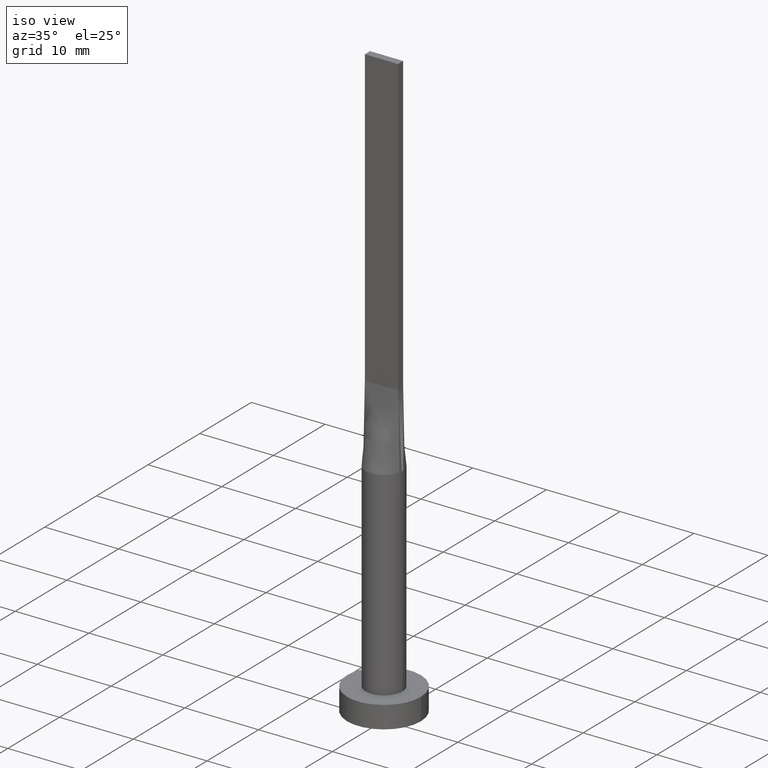
[diagram: clean part render]
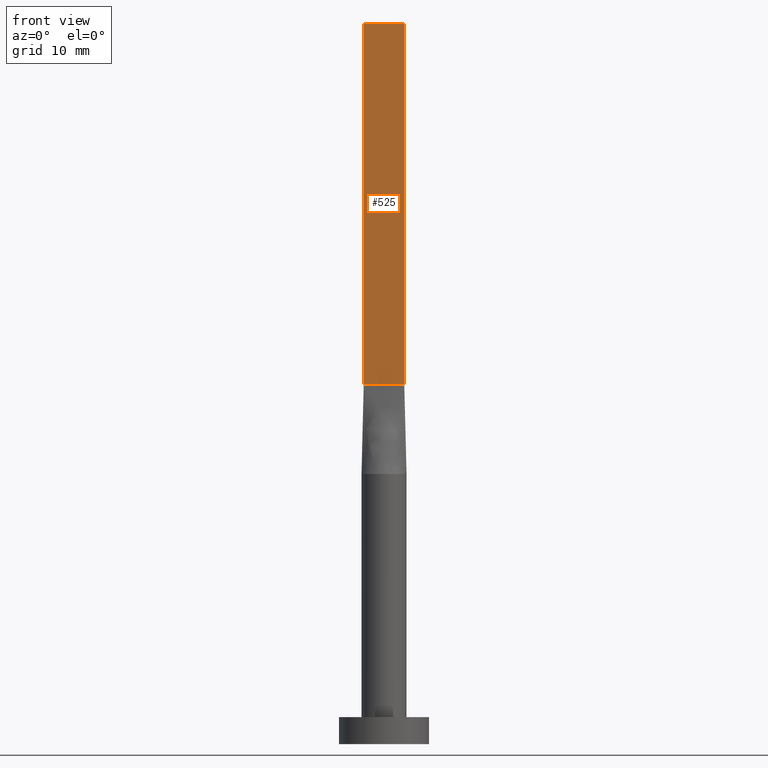
[diagram: tour spotlight — one face highlighted and labeled with its STEP entity id]
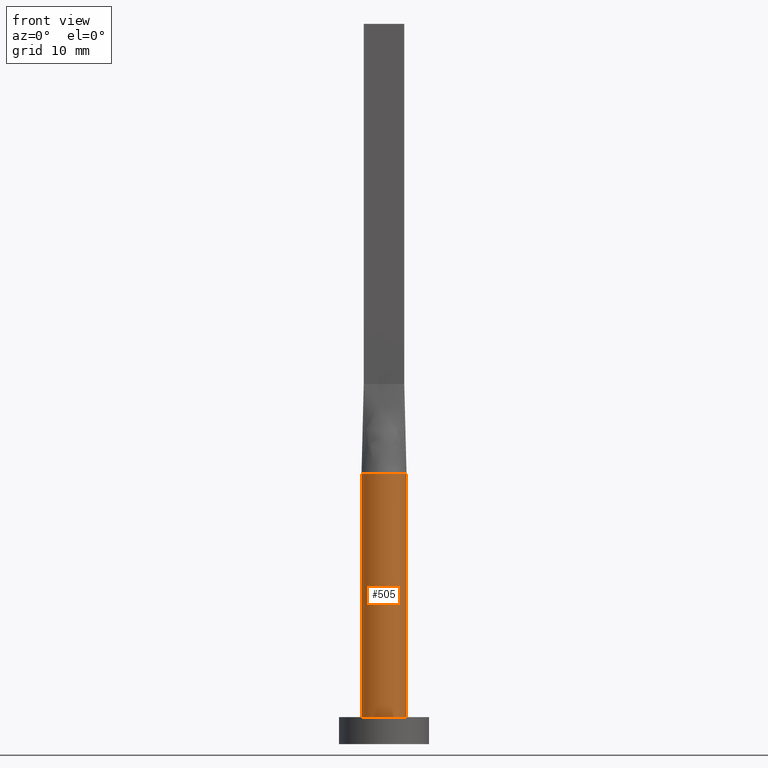
[diagram: tour spotlight — one face highlighted and labeled with its STEP entity id]
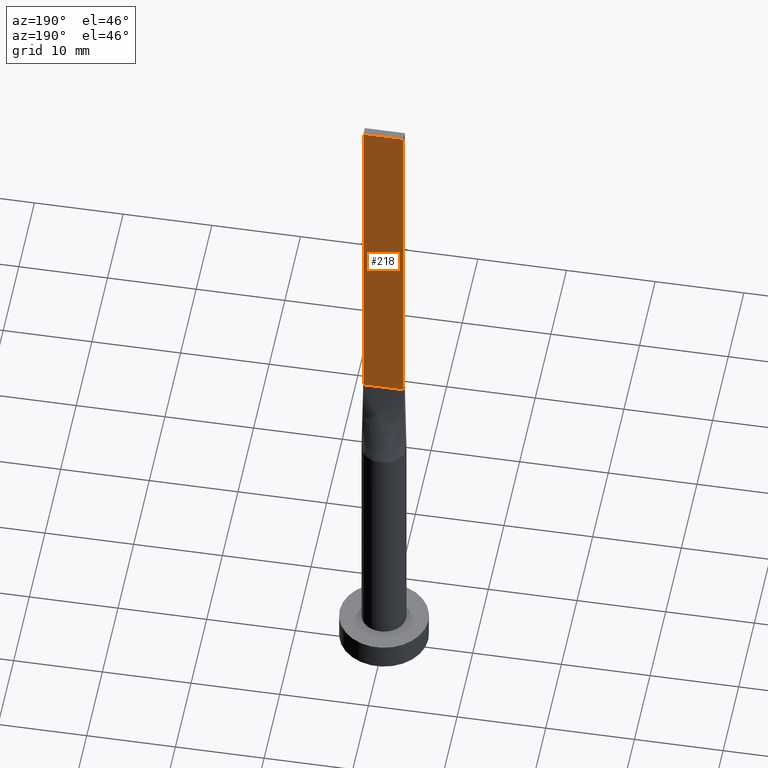
[diagram: tour spotlight — one face highlighted and labeled with its STEP entity id]
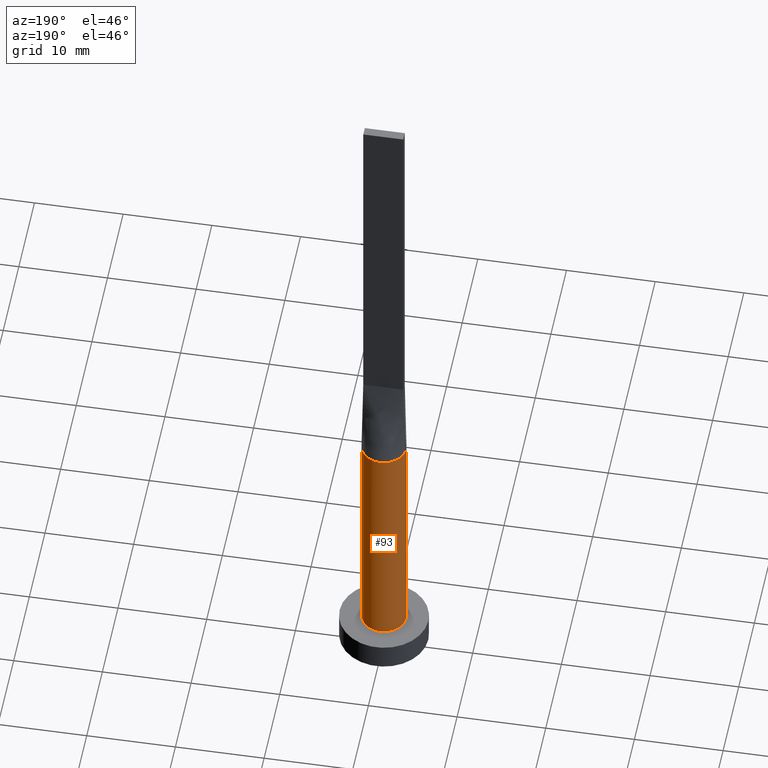
[diagram: tour spotlight — one face highlighted and labeled with its STEP entity id]
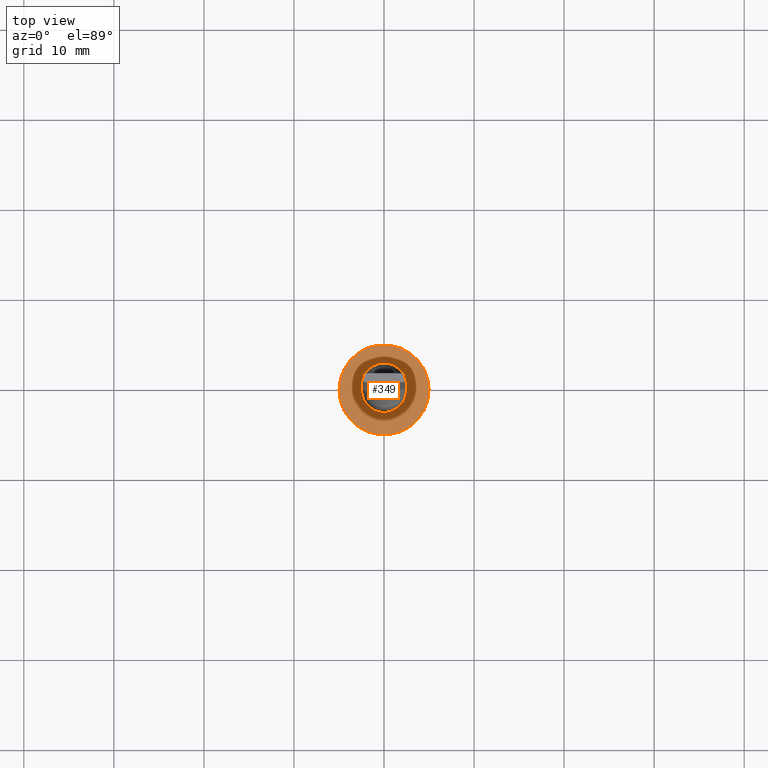
[diagram: tour spotlight — one face highlighted and labeled with its STEP entity id]
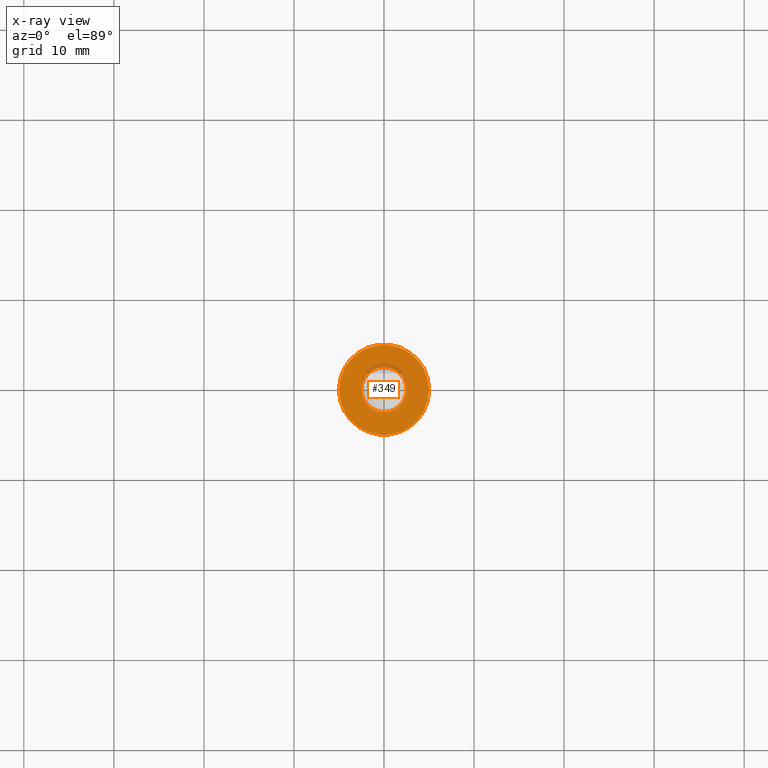
[diagram: x-ray of the same camera — body ghosted, this tour face saturated]
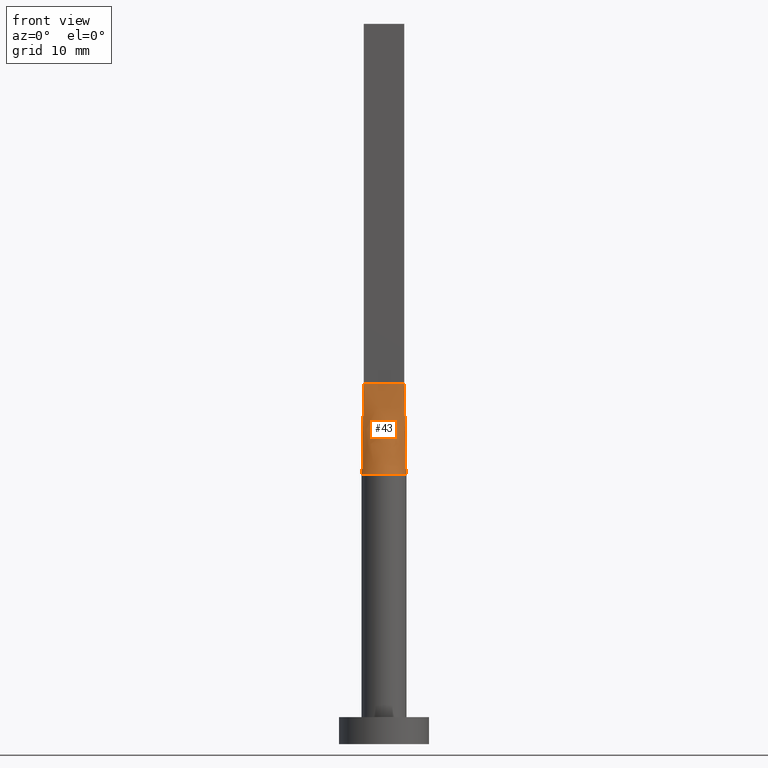
[diagram: tour spotlight — one face highlighted and labeled with its STEP entity id]
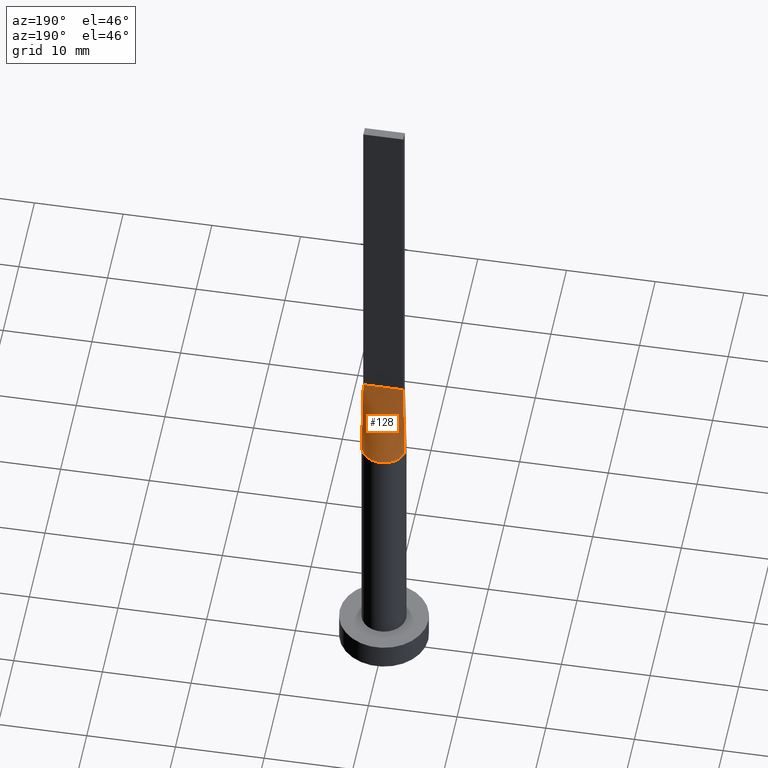
[diagram: tour spotlight — one face highlighted and labeled with its STEP entity id]
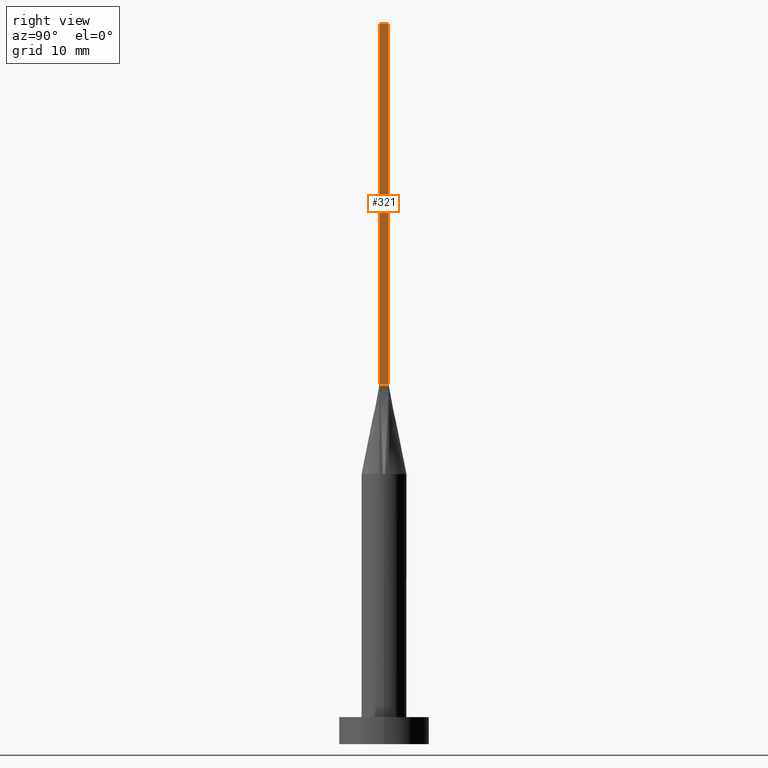
[diagram: tour spotlight — one face highlighted and labeled with its STEP entity id]
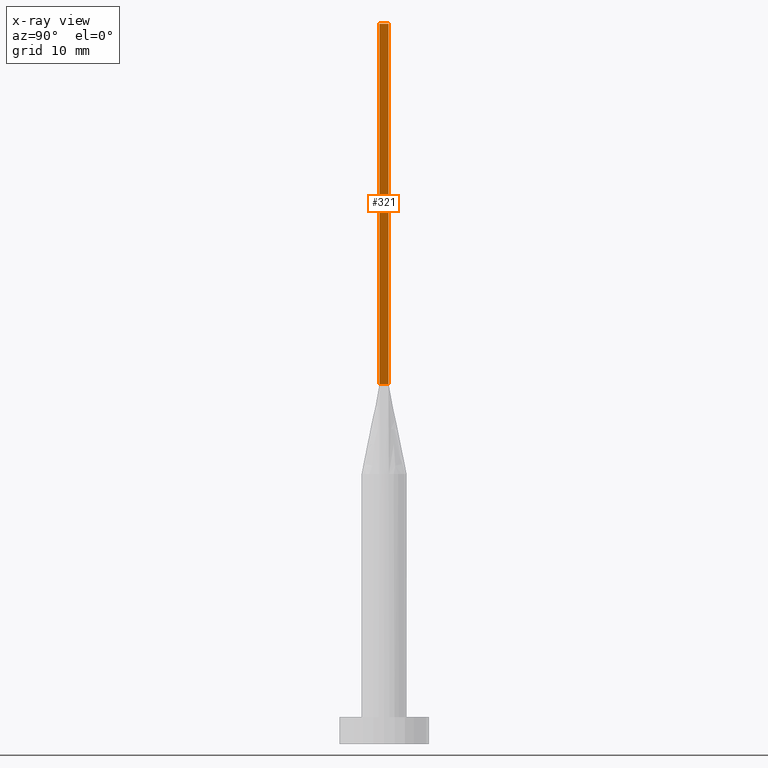
[diagram: x-ray of the same camera — body ghosted, this tour face saturated]
A machine part: a face-by-face anatomy tour. The part has 15 B-rep faces; the first image is the clean iso view, then the 8 largest visible faces are spotlighted one at a time (largest first), each with its STEP entity span.

Face 1 — front view, entity #525. In plain terms, the highlighted planar face has unit normal (0, 1, -0).
Definition (entity closure, byte-faithful):
#9 = LINE ( 'NONE', #227, #257 ) ;
#13 = VERTEX_POINT ( 'NONE', #199 ) ;
#15 = DIRECTION ( 'NONE',  ( 7.228014483236697048E-17, 1.000000000000000000, -0.000000000000000000 ) ) ;
#45 = VECTOR ( 'NONE', #450, 1000.000000000000000 ) ;
#58 = LINE ( 'NONE', #231, #399 ) ;
#59 = ORIENTED_EDGE ( 'NONE', *, *, #208, .T. ) ;
#64 = ORIENTED_EDGE ( 'NONE', *, *, #233, .T. ) ;
#77 = VERTEX_POINT ( 'NONE', #127 ) ;
#104 = CARTESIAN_POINT ( 'NONE',  ( -2.250000000000000000, -0.4999999999999994449, 80.00000000000000000 ) ) ;
#122 = CARTESIAN_POINT ( 'NONE',  ( 2.250000000000000000, -0.4999999999999997780, 80.00000000000000000 ) ) ;
#127 = CARTESIAN_POINT ( 'NONE',  ( -2.250000000000000000, -0.4999999999999994449, 80.00000000000000000 ) ) ;
#146 = DIRECTION ( 'NONE',  ( 1.000000000000000000, -7.228014483236697048E-17, 0.000000000000000000 ) ) ;
#149 = DIRECTION ( 'NONE',  ( -1.000000000000000000, 7.228014483236697048E-17, 0.000000000000000000 ) ) ;
#199 = CARTESIAN_POINT ( 'NONE',  ( 2.250000000000000000, -0.4999999999999997780, 40.00000000000000000 ) ) ;
#200 = EDGE_CURVE ( 'NONE', #77, #315, #9, .T. ) ;
#208 = EDGE_CURVE ( 'NONE', #77, #216, #312, .T. ) ;
#216 = VERTEX_POINT ( 'NONE', #395 ) ;
#227 = CARTESIAN_POINT ( 'NONE',  ( -2.250000000000000000, -0.4999999999999994449, 80.00000000000000000 ) ) ;
#231 = CARTESIAN_POINT ( 'NONE',  ( -2.250000000000000000, -0.4999999999999994449, 40.00000000000000000 ) ) ;
#233 = EDGE_CURVE ( 'NONE', #216, #13, #58, .T. ) ;
#235 = EDGE_LOOP ( 'NONE', ( #64, #375, #571, #59 ) ) ;
#244 = AXIS2_PLACEMENT_3D ( 'NONE', #104, #15, #149 ) ;
#256 = DIRECTION ( 'NONE',  ( -0.000000000000000000, -0.000000000000000000, -1.000000000000000000 ) ) ;
#257 = VECTOR ( 'NONE', #146, 1000.000000000000000 ) ;
#268 = CARTESIAN_POINT ( 'NONE',  ( -2.250000000000000000, -0.4999999999999994449, 80.00000000000000000 ) ) ;
#312 = LINE ( 'NONE', #268, #45 ) ;
#315 = VERTEX_POINT ( 'NONE', #557 ) ;
#375 = ORIENTED_EDGE ( 'NONE', *, *, #486, .F. ) ;
#379 = LINE ( 'NONE', #122, #483 ) ;
#395 = CARTESIAN_POINT ( 'NONE',  ( -2.250000000000000000, -0.4999999999999994449, 40.00000000000000000 ) ) ;
#399 = VECTOR ( 'NONE', #400, 1000.000000000000000 ) ;
#400 = DIRECTION ( 'NONE',  ( 1.000000000000000000, -7.228014483236697048E-17, 0.000000000000000000 ) ) ;
#401 = FACE_OUTER_BOUND ( 'NONE', #235, .T. ) ;
#442 = PLANE ( 'NONE',  #244 ) ;
#450 = DIRECTION ( 'NONE',  ( -0.000000000000000000, -0.000000000000000000, -1.000000000000000000 ) ) ;
#483 = VECTOR ( 'NONE', #256, 1000.000000000000000 ) ;
#486 = EDGE_CURVE ( 'NONE', #315, #13, #379, .T. ) ;
#525 = ADVANCED_FACE ( 'NONE', ( #401 ), #442, .F. ) ;
#557 = CARTESIAN_POINT ( 'NONE',  ( 2.250000000000000000, -0.4999999999999997780, 80.00000000000000000 ) ) ;
#571 = ORIENTED_EDGE ( 'NONE', *, *, #200, .F. ) ;

Face 2 — front view, entity #505. In plain terms, the highlighted cylindrical surface (edge-blend (fillet) strip) has radius 2.5 mm, axis along (-0, -0, -1).
Definition (entity closure, byte-faithful):
#4 = VERTEX_POINT ( 'NONE', #160 ) ;
#8 = DIRECTION ( 'NONE',  ( 1.000000000000000000, 0.000000000000000000, 0.000000000000000000 ) ) ;
#23 = VECTOR ( 'NONE', #171, 1000.000000000000000 ) ;
#27 = CIRCLE ( 'NONE', #383, 2.500000000000000000 ) ;
#31 = DIRECTION ( 'NONE',  ( 0.000000000000000000, 0.000000000000000000, 1.000000000000000000 ) ) ;
#52 = AXIS2_PLACEMENT_3D ( 'NONE', #370, #546, #152 ) ;
#60 = DIRECTION ( 'NONE',  ( 0.000000000000000000, 0.000000000000000000, 1.000000000000000000 ) ) ;
#63 = EDGE_CURVE ( 'NONE', #320, #305, #124, .T. ) ;
#65 = CARTESIAN_POINT ( 'NONE',  ( 2.499645589935823420, 5.999196936655281332E-16, 30.00000000000000000 ) ) ;
#72 = CIRCLE ( 'NONE', #572, 2.500000000000000000 ) ;
#79 = DIRECTION ( 'NONE',  ( 0.000000000000000000, 0.000000000000000000, 1.000000000000000000 ) ) ;
#83 = CARTESIAN_POINT ( 'NONE',  ( -2.500000000000000000, 0.000000000000000000, 3.000000000000000000 ) ) ;
#88 = VERTEX_POINT ( 'NONE', #477 ) ;
#91 = CARTESIAN_POINT ( 'NONE',  ( -2.500000000000000000, 0.000000000000000000, 30.00000000000000000 ) ) ;
#95 = LINE ( 'NONE', #343, #299 ) ;
#124 = CIRCLE ( 'NONE', #492, 2.500000000000000000 ) ;
#125 = DIRECTION ( 'NONE',  ( 1.000000000000000000, 0.000000000000000000, 0.000000000000000000 ) ) ;
#152 = DIRECTION ( 'NONE',  ( -1.000000000000000000, 0.000000000000000000, 0.000000000000000000 ) ) ;
#160 = CARTESIAN_POINT ( 'NONE',  ( 2.500000000000000000, 3.061616997868383141E-16, 3.000000000000000000 ) ) ;
#167 = LINE ( 'NONE', #91, #23 ) ;
#171 = DIRECTION ( 'NONE',  ( -0.000000000000000000, -0.000000000000000000, -1.000000000000000000 ) ) ;
#176 = CARTESIAN_POINT ( 'NONE',  ( 0.000000000000000000, 0.000000000000000000, 30.00000000000000000 ) ) ;
#177 = CIRCLE ( 'NONE', #576, 2.500000000000000000 ) ;
#240 = ORIENTED_EDGE ( 'NONE', *, *, #63, .F. ) ;
#273 = EDGE_LOOP ( 'NONE', ( #460, #240, #493, #389, #428, #393 ) ) ;
#299 = VECTOR ( 'NONE', #529, 1000.000000000000000 ) ;
#305 = VERTEX_POINT ( 'NONE', #65 ) ;
#316 = CARTESIAN_POINT ( 'NONE',  ( -2.499645589935823420, -1.700711608024726496E-15, 30.00000000000000000 ) ) ;
#320 = VERTEX_POINT ( 'NONE', #461 ) ;
#343 = CARTESIAN_POINT ( 'NONE',  ( 2.500000000000000000, 3.061616997868383141E-16, 30.00000000000000000 ) ) ;
#350 = DIRECTION ( 'NONE',  ( 1.000000000000000000, -4.440892098500626162E-15, 0.000000000000000000 ) ) ;
#361 = EDGE_CURVE ( 'NONE', #566, #372, #167, .T. ) ;
#370 = CARTESIAN_POINT ( 'NONE',  ( 0.000000000000000000, 0.000000000000000000, 30.00000000000000000 ) ) ;
#372 = VERTEX_POINT ( 'NONE', #83 ) ;
#378 = EDGE_CURVE ( 'NONE', #88, #320, #177, .T. ) ;
#383 = AXIS2_PLACEMENT_3D ( 'NONE', #476, #31, #125 ) ;
#388 = EDGE_CURVE ( 'NONE', #305, #4, #95, .T. ) ;
#389 = ORIENTED_EDGE ( 'NONE', *, *, #436, .F. ) ;
#393 = ORIENTED_EDGE ( 'NONE', *, *, #549, .T. ) ;
#408 = FACE_OUTER_BOUND ( 'NONE', #273, .T. ) ;
#415 = DIRECTION ( 'NONE',  ( 1.000000000000000000, 0.000000000000000000, 0.000000000000000000 ) ) ;
#428 = ORIENTED_EDGE ( 'NONE', *, *, #361, .T. ) ;
#430 = DIRECTION ( 'NONE',  ( 0.000000000000000000, 0.000000000000000000, 1.000000000000000000 ) ) ;
#436 = EDGE_CURVE ( 'NONE', #566, #88, #27, .T. ) ;
#460 = ORIENTED_EDGE ( 'NONE', *, *, #388, .F. ) ;
#461 = CARTESIAN_POINT ( 'NONE',  ( 2.440706242928429415, -0.5423794613208688942, 30.00000000000000000 ) ) ;
#476 = CARTESIAN_POINT ( 'NONE',  ( 0.000000000000000000, 0.000000000000000000, 30.00000000000000000 ) ) ;
#477 = CARTESIAN_POINT ( 'NONE',  ( -2.440688158044365785, -0.5423755258804862089, 30.00000000000000000 ) ) ;
#481 = CARTESIAN_POINT ( 'NONE',  ( 0.000000000000000000, 0.000000000000000000, 30.00000000000000000 ) ) ;
#492 = AXIS2_PLACEMENT_3D ( 'NONE', #481, #430, #350 ) ;
#493 = ORIENTED_EDGE ( 'NONE', *, *, #378, .F. ) ;
#505 = ADVANCED_FACE ( 'NONE', ( #408 ), #507, .T. ) ;
#507 = CYLINDRICAL_SURFACE ( 'NONE', #52, 2.500000000000000000 ) ;
#529 = DIRECTION ( 'NONE',  ( -0.000000000000000000, -0.000000000000000000, -1.000000000000000000 ) ) ;
#546 = DIRECTION ( 'NONE',  ( -0.000000000000000000, -0.000000000000000000, -1.000000000000000000 ) ) ;
#549 = EDGE_CURVE ( 'NONE', #372, #4, #72, .T. ) ;
#553 = CARTESIAN_POINT ( 'NONE',  ( 0.000000000000000000, 0.000000000000000000, 3.000000000000000000 ) ) ;
#566 = VERTEX_POINT ( 'NONE', #316 ) ;
#572 = AXIS2_PLACEMENT_3D ( 'NONE', #553, #60, #8 ) ;
#576 = AXIS2_PLACEMENT_3D ( 'NONE', #176, #79, #415 ) ;

Face 3 — auxiliary view, entity #218. In plain terms, the highlighted planar face has unit normal (0, -1, 0).
Definition (entity closure, byte-faithful):
#3 = FACE_OUTER_BOUND ( 'NONE', #515, .T. ) ;
#22 = EDGE_CURVE ( 'NONE', #280, #101, #412, .T. ) ;
#32 = VECTOR ( 'NONE', #130, 1000.000000000000000 ) ;
#94 = ORIENTED_EDGE ( 'NONE', *, *, #143, .F. ) ;
#98 = DIRECTION ( 'NONE',  ( 0.000000000000000000, -0.000000000000000000, -1.000000000000000000 ) ) ;
#101 = VERTEX_POINT ( 'NONE', #109 ) ;
#109 = CARTESIAN_POINT ( 'NONE',  ( 2.249999999999999556, 0.5000000000000002220, 40.00000000000000000 ) ) ;
#117 = CARTESIAN_POINT ( 'NONE',  ( -2.249999999999999556, 0.5000000000000002220, 80.00000000000000000 ) ) ;
#118 = VECTOR ( 'NONE', #172, 1000.000000000000000 ) ;
#126 = LINE ( 'NONE', #298, #32 ) ;
#130 = DIRECTION ( 'NONE',  ( -1.000000000000000000, -0.000000000000000000, -0.000000000000000000 ) ) ;
#142 = DIRECTION ( 'NONE',  ( 0.000000000000000000, -1.000000000000000000, 0.000000000000000000 ) ) ;
#143 = EDGE_CURVE ( 'NONE', #346, #445, #530, .T. ) ;
#172 = DIRECTION ( 'NONE',  ( -0.000000000000000000, -0.000000000000000000, -1.000000000000000000 ) ) ;
#184 = EDGE_CURVE ( 'NONE', #101, #445, #126, .T. ) ;
#185 = PLANE ( 'NONE',  #466 ) ;
#218 = ADVANCED_FACE ( 'NONE', ( #3 ), #185, .F. ) ;
#228 = VECTOR ( 'NONE', #369, 1000.000000000000000 ) ;
#236 = VECTOR ( 'NONE', #275, 1000.000000000000000 ) ;
#264 = CARTESIAN_POINT ( 'NONE',  ( -2.249999999999999556, 0.5000000000000002220, 80.00000000000000000 ) ) ;
#274 = ORIENTED_EDGE ( 'NONE', *, *, #559, .F. ) ;
#275 = DIRECTION ( 'NONE',  ( -1.000000000000000000, 0.000000000000000000, 0.000000000000000000 ) ) ;
#280 = VERTEX_POINT ( 'NONE', #402 ) ;
#298 = CARTESIAN_POINT ( 'NONE',  ( -2.249999999999999556, 0.5000000000000002220, 40.00000000000000000 ) ) ;
#324 = ORIENTED_EDGE ( 'NONE', *, *, #184, .T. ) ;
#331 = CARTESIAN_POINT ( 'NONE',  ( 2.249999999999999556, 0.5000000000000002220, 80.00000000000000000 ) ) ;
#346 = VERTEX_POINT ( 'NONE', #117 ) ;
#369 = DIRECTION ( 'NONE',  ( -0.000000000000000000, -0.000000000000000000, -1.000000000000000000 ) ) ;
#386 = CARTESIAN_POINT ( 'NONE',  ( -2.249999999999999556, 0.5000000000000002220, 40.00000000000000000 ) ) ;
#402 = CARTESIAN_POINT ( 'NONE',  ( 2.249999999999999556, 0.5000000000000002220, 80.00000000000000000 ) ) ;
#412 = LINE ( 'NONE', #331, #228 ) ;
#445 = VERTEX_POINT ( 'NONE', #386 ) ;
#452 = CARTESIAN_POINT ( 'NONE',  ( 2.249999999999999556, 0.5000000000000002220, 80.00000000000000000 ) ) ;
#466 = AXIS2_PLACEMENT_3D ( 'NONE', #538, #142, #98 ) ;
#499 = LINE ( 'NONE', #452, #236 ) ;
#515 = EDGE_LOOP ( 'NONE', ( #324, #94, #274, #528 ) ) ;
#528 = ORIENTED_EDGE ( 'NONE', *, *, #22, .T. ) ;
#530 = LINE ( 'NONE', #264, #118 ) ;
#538 = CARTESIAN_POINT ( 'NONE',  ( 2.249999999999999556, 0.5000000000000002220, 80.00000000000000000 ) ) ;
#559 = EDGE_CURVE ( 'NONE', #280, #346, #499, .T. ) ;

Face 4 — auxiliary view, entity #93. In plain terms, the highlighted cylindrical surface (edge-blend (fillet) strip) has radius 2.5 mm, axis along (-0, -0, -1).
Definition (entity closure, byte-faithful):
#4 = VERTEX_POINT ( 'NONE', #160 ) ;
#7 = CARTESIAN_POINT ( 'NONE',  ( -2.093723281432891437, 1.388001797188529451, 30.00000000000000000 ) ) ;
#11 = CARTESIAN_POINT ( 'NONE',  ( -2.323660390030918510, 0.9543733860570832173, 30.00000000000000000 ) ) ;
#16 = EDGE_CURVE ( 'NONE', #337, #566, #354, .T. ) ;
#19 = ORIENTED_EDGE ( 'NONE', *, *, #192, .F. ) ;
#23 = VECTOR ( 'NONE', #171, 1000.000000000000000 ) ;
#42 = CARTESIAN_POINT ( 'NONE',  ( 2.323660390030918954, 0.9543733860570833283, 30.00000000000000711 ) ) ;
#54 = DIRECTION ( 'NONE',  ( 1.000000000000000000, 0.000000000000000000, 0.000000000000000000 ) ) ;
#65 = CARTESIAN_POINT ( 'NONE',  ( 2.499645589935823420, 5.999196936655281332E-16, 30.00000000000000000 ) ) ;
#66 = ORIENTED_EDGE ( 'NONE', *, *, #361, .F. ) ;
#70 = AXIS2_PLACEMENT_3D ( 'NONE', #300, #138, #310 ) ;
#81 = EDGE_CURVE ( 'NONE', #305, #478, #314, .T. ) ;
#83 = CARTESIAN_POINT ( 'NONE',  ( -2.500000000000000000, 0.000000000000000000, 3.000000000000000000 ) ) ;
#90 = CARTESIAN_POINT ( 'NONE',  ( 1.935644909179608186, 1.608159499248285051, 29.99999999999999645 ) ) ;
#91 = CARTESIAN_POINT ( 'NONE',  ( -2.500000000000000000, 0.000000000000000000, 30.00000000000000000 ) ) ;
#93 = ADVANCED_FACE ( 'NONE', ( #433 ), #533, .T. ) ;
#95 = LINE ( 'NONE', #343, #299 ) ;
#137 = CARTESIAN_POINT ( 'NONE',  ( -1.260416918790968843, 2.182794756967428196, 29.99999999999999289 ) ) ;
#138 = DIRECTION ( 'NONE',  ( 0.000000000000000000, 0.000000000000000000, 1.000000000000000000 ) ) ;
#144 = ORIENTED_EDGE ( 'NONE', *, *, #81, .F. ) ;
#160 = CARTESIAN_POINT ( 'NONE',  ( 2.500000000000000000, 3.061616997868383141E-16, 3.000000000000000000 ) ) ;
#167 = LINE ( 'NONE', #91, #23 ) ;
#171 = DIRECTION ( 'NONE',  ( -0.000000000000000000, -0.000000000000000000, -1.000000000000000000 ) ) ;
#192 = EDGE_CURVE ( 'NONE', #478, #337, #444, .T. ) ;
#202 = DIRECTION ( 'NONE',  ( 1.000000000000000000, 0.000000000000000000, 0.000000000000000000 ) ) ;
#212 = CARTESIAN_POINT ( 'NONE',  ( 2.440676307083422980, 0.5423728264510006003, 30.00000000000000000 ) ) ;
#237 = CARTESIAN_POINT ( 'NONE',  ( 1.260416918790968843, 2.182794756967427752, 29.99999999999999645 ) ) ;
#252 = AXIS2_PLACEMENT_3D ( 'NONE', #307, #459, #565 ) ;
#254 = DIRECTION ( 'NONE',  ( 0.000000000000000000, 0.000000000000000000, 1.000000000000000000 ) ) ;
#266 = CARTESIAN_POINT ( 'NONE',  ( -0.6674771052374470770, 2.430579781493059421, 29.99999999999998934 ) ) ;
#290 = ORIENTED_EDGE ( 'NONE', *, *, #534, .T. ) ;
#299 = VECTOR ( 'NONE', #529, 1000.000000000000000 ) ;
#300 = CARTESIAN_POINT ( 'NONE',  ( 0.000000000000000000, 0.000000000000000000, 30.00000000000000000 ) ) ;
#301 = ORIENTED_EDGE ( 'NONE', *, *, #16, .F. ) ;
#305 = VERTEX_POINT ( 'NONE', #65 ) ;
#307 = CARTESIAN_POINT ( 'NONE',  ( 0.000000000000000000, 0.000000000000000000, 30.00000000000000000 ) ) ;
#309 = CARTESIAN_POINT ( 'NONE',  ( 0.3342381693191150416, 2.499999999999999556, 30.00000000000000355 ) ) ;
#310 = DIRECTION ( 'NONE',  ( 1.000000000000000000, 0.000000000000000000, 0.000000000000000000 ) ) ;
#314 = CIRCLE ( 'NONE', #70, 2.500000000000000000 ) ;
#316 = CARTESIAN_POINT ( 'NONE',  ( -2.499645589935823420, -1.700711608024726496E-15, 30.00000000000000000 ) ) ;
#317 = CARTESIAN_POINT ( 'NONE',  ( 0.6674771052374470770, 2.430579781493058977, 29.99999999999998224 ) ) ;
#337 = VERTEX_POINT ( 'NONE', #457 ) ;
#343 = CARTESIAN_POINT ( 'NONE',  ( 2.500000000000000000, 3.061616997868383141E-16, 30.00000000000000000 ) ) ;
#353 = CARTESIAN_POINT ( 'NONE',  ( 1.519400572660313031, 2.006070808634367708, 30.00000000000000000 ) ) ;
#354 = CIRCLE ( 'NONE', #472, 2.500000000000000000 ) ;
#356 = ORIENTED_EDGE ( 'NONE', *, *, #388, .T. ) ;
#360 = CARTESIAN_POINT ( 'NONE',  ( -2.440694335308545071, 0.5423767520433731004, 30.00000000000000000 ) ) ;
#361 = EDGE_CURVE ( 'NONE', #566, #372, #167, .T. ) ;
#372 = VERTEX_POINT ( 'NONE', #83 ) ;
#388 = EDGE_CURVE ( 'NONE', #305, #4, #95, .T. ) ;
#410 = CARTESIAN_POINT ( 'NONE',  ( 0.000000000000000000, 0.000000000000000000, 30.00000000000000000 ) ) ;
#419 = CIRCLE ( 'NONE', #562, 2.500000000000000000 ) ;
#429 = CARTESIAN_POINT ( 'NONE',  ( 2.396350003401058526, 0.7408555563113465858, 30.00000000000000355 ) ) ;
#433 = FACE_OUTER_BOUND ( 'NONE', #437, .T. ) ;
#435 = CARTESIAN_POINT ( 'NONE',  ( -1.519400572660313253, 2.006070808634367264, 30.00000000000001421 ) ) ;
#437 = EDGE_LOOP ( 'NONE', ( #144, #356, #290, #66, #301, #19 ) ) ;
#444 = B_SPLINE_CURVE_WITH_KNOTS ( 'NONE', 3,
 ( #470, #429, #42, #578, #90, #353, #237, #317, #309, #448, #266, #137, #435, #541, #7, #11, #496, #360 ),
 .UNSPECIFIED., .F., .F.,
 ( 4, 2, 2, 2, 2, 2, 2, 2, 4 ),
 ( 0.000000000000000000, 0.1249999999999999722, 0.2500000000000000000, 0.3750000000000000000, 0.5000000000000001110, 0.6250000000000001110, 0.7500000000000000000, 0.8750000000000000000, 1.000000000000000000 ),
 .UNSPECIFIED. ) ;
#446 = CARTESIAN_POINT ( 'NONE',  ( 0.000000000000000000, 0.000000000000000000, 3.000000000000000000 ) ) ;
#448 = CARTESIAN_POINT ( 'NONE',  ( -0.3342381693191151526, 2.499999999999999556, 30.00000000000000355 ) ) ;
#457 = CARTESIAN_POINT ( 'NONE',  ( -2.440694335308545071, 0.5423767520433731004, 30.00000000000000000 ) ) ;
#459 = DIRECTION ( 'NONE',  ( -0.000000000000000000, -0.000000000000000000, -1.000000000000000000 ) ) ;
#470 = CARTESIAN_POINT ( 'NONE',  ( 2.440676307083422980, 0.5423728264510006003, 30.00000000000000000 ) ) ;
#472 = AXIS2_PLACEMENT_3D ( 'NONE', #410, #254, #202 ) ;
#478 = VERTEX_POINT ( 'NONE', #212 ) ;
#496 = CARTESIAN_POINT ( 'NONE',  ( -2.396350003401058082, 0.7408555563113466969, 30.00000000000000000 ) ) ;
#502 = DIRECTION ( 'NONE',  ( 0.000000000000000000, 0.000000000000000000, 1.000000000000000000 ) ) ;
#529 = DIRECTION ( 'NONE',  ( -0.000000000000000000, -0.000000000000000000, -1.000000000000000000 ) ) ;
#533 = CYLINDRICAL_SURFACE ( 'NONE', #252, 2.500000000000000000 ) ;
#534 = EDGE_CURVE ( 'NONE', #4, #372, #419, .T. ) ;
#541 = CARTESIAN_POINT ( 'NONE',  ( -1.935644909179609297, 1.608159499248285718, 30.00000000000001066 ) ) ;
#562 = AXIS2_PLACEMENT_3D ( 'NONE', #446, #502, #54 ) ;
#565 = DIRECTION ( 'NONE',  ( -1.000000000000000000, 0.000000000000000000, 0.000000000000000000 ) ) ;
#566 = VERTEX_POINT ( 'NONE', #316 ) ;
#578 = CARTESIAN_POINT ( 'NONE',  ( 2.093723281432890104, 1.388001797188529007, 29.99999999999998934 ) ) ;

Face 5 — top view, entity #349. An x-ray twin of the same camera follows (body ghosted, this face saturated) — the face is partly hidden behind the body. In plain terms, the highlighted planar face has unit normal (0, 0, 1).
Definition (entity closure, byte-faithful):
#1 = ORIENTED_EDGE ( 'NONE', *, *, #549, .F. ) ;
#4 = VERTEX_POINT ( 'NONE', #160 ) ;
#5 = DIRECTION ( 'NONE',  ( 1.000000000000000000, 0.000000000000000000, 0.000000000000000000 ) ) ;
#6 = CIRCLE ( 'NONE', #432, 5.000000000000000000 ) ;
#8 = DIRECTION ( 'NONE',  ( 1.000000000000000000, 0.000000000000000000, 0.000000000000000000 ) ) ;
#29 = CARTESIAN_POINT ( 'NONE',  ( 0.000000000000000000, 0.000000000000000000, 3.000000000000000000 ) ) ;
#54 = DIRECTION ( 'NONE',  ( 1.000000000000000000, 0.000000000000000000, 0.000000000000000000 ) ) ;
#60 = DIRECTION ( 'NONE',  ( 0.000000000000000000, 0.000000000000000000, 1.000000000000000000 ) ) ;
#72 = CIRCLE ( 'NONE', #572, 2.500000000000000000 ) ;
#83 = CARTESIAN_POINT ( 'NONE',  ( -2.500000000000000000, 0.000000000000000000, 3.000000000000000000 ) ) ;
#85 = ORIENTED_EDGE ( 'NONE', *, *, #224, .T. ) ;
#92 = CARTESIAN_POINT ( 'NONE',  ( 0.000000000000000000, 0.000000000000000000, 3.000000000000000000 ) ) ;
#105 = ORIENTED_EDGE ( 'NONE', *, *, #417, .T. ) ;
#115 = EDGE_LOOP ( 'NONE', ( #105, #85 ) ) ;
#160 = CARTESIAN_POINT ( 'NONE',  ( 2.500000000000000000, 3.061616997868383141E-16, 3.000000000000000000 ) ) ;
#187 = PLANE ( 'NONE',  #272 ) ;
#222 = VERTEX_POINT ( 'NONE', #489 ) ;
#224 = EDGE_CURVE ( 'NONE', #520, #222, #6, .T. ) ;
#271 = DIRECTION ( 'NONE',  ( 1.000000000000000000, 0.000000000000000000, 0.000000000000000000 ) ) ;
#272 = AXIS2_PLACEMENT_3D ( 'NONE', #29, #490, #573 ) ;
#349 = ADVANCED_FACE ( 'NONE', ( #516, #521 ), #187, .T. ) ;
#362 = CARTESIAN_POINT ( 'NONE',  ( 5.000000000000000000, 6.123233995736766282E-16, 3.000000000000000000 ) ) ;
#372 = VERTEX_POINT ( 'NONE', #83 ) ;
#384 = DIRECTION ( 'NONE',  ( 0.000000000000000000, 0.000000000000000000, 1.000000000000000000 ) ) ;
#417 = EDGE_CURVE ( 'NONE', #222, #520, #519, .T. ) ;
#419 = CIRCLE ( 'NONE', #562, 2.500000000000000000 ) ;
#432 = AXIS2_PLACEMENT_3D ( 'NONE', #92, #443, #271 ) ;
#443 = DIRECTION ( 'NONE',  ( 0.000000000000000000, 0.000000000000000000, 1.000000000000000000 ) ) ;
#446 = CARTESIAN_POINT ( 'NONE',  ( 0.000000000000000000, 0.000000000000000000, 3.000000000000000000 ) ) ;
#464 = EDGE_LOOP ( 'NONE', ( #1, #548 ) ) ;
#469 = CARTESIAN_POINT ( 'NONE',  ( 0.000000000000000000, 0.000000000000000000, 3.000000000000000000 ) ) ;
#489 = CARTESIAN_POINT ( 'NONE',  ( -5.000000000000000000, 0.000000000000000000, 3.000000000000000000 ) ) ;
#490 = DIRECTION ( 'NONE',  ( 0.000000000000000000, 0.000000000000000000, 1.000000000000000000 ) ) ;
#502 = DIRECTION ( 'NONE',  ( 0.000000000000000000, 0.000000000000000000, 1.000000000000000000 ) ) ;
#516 = FACE_BOUND ( 'NONE', #464, .T. ) ;
#519 = CIRCLE ( 'NONE', #532, 5.000000000000000000 ) ;
#520 = VERTEX_POINT ( 'NONE', #362 ) ;
#521 = FACE_OUTER_BOUND ( 'NONE', #115, .T. ) ;
#532 = AXIS2_PLACEMENT_3D ( 'NONE', #469, #384, #5 ) ;
#534 = EDGE_CURVE ( 'NONE', #4, #372, #419, .T. ) ;
#548 = ORIENTED_EDGE ( 'NONE', *, *, #534, .F. ) ;
#549 = EDGE_CURVE ( 'NONE', #372, #4, #72, .T. ) ;
#553 = CARTESIAN_POINT ( 'NONE',  ( 0.000000000000000000, 0.000000000000000000, 3.000000000000000000 ) ) ;
#562 = AXIS2_PLACEMENT_3D ( 'NONE', #446, #502, #54 ) ;
#572 = AXIS2_PLACEMENT_3D ( 'NONE', #553, #60, #8 ) ;
#573 = DIRECTION ( 'NONE',  ( 1.000000000000000000, 0.000000000000000000, -0.000000000000000000 ) ) ;

Face 6 — front view, entity #43. In plain terms, the highlighted face is a freeform B-spline surface patch.
Definition (entity closure, byte-faithful):
#13 = VERTEX_POINT ( 'NONE', #199 ) ;
#25 = CARTESIAN_POINT ( 'NONE',  ( -2.323660390030918066, -0.9543733860570832173, 30.00000000000000711 ) ) ;
#30 = CARTESIAN_POINT ( 'NONE',  ( -2.093723281432891881, -1.388001797188529007, 30.00000000000000000 ) ) ;
#37 = CARTESIAN_POINT ( 'NONE',  ( 0.6674771052374466329, -2.430579781493059865, 29.99999999999999289 ) ) ;
#43 = ADVANCED_FACE ( 'NONE', ( #552 ), #221, .T. ) ;
#44 = CARTESIAN_POINT ( 'NONE',  ( 0.3749999999999998890, -0.4999999999999995559, 39.99999999999999289 ) ) ;
#58 = LINE ( 'NONE', #231, #399 ) ;
#73 = CARTESIAN_POINT ( 'NONE',  ( -2.396350003401058970, -0.7408555563113458087, 30.00000000000000355 ) ) ;
#79 = DIRECTION ( 'NONE',  ( 0.000000000000000000, 0.000000000000000000, 1.000000000000000000 ) ) ;
#88 = VERTEX_POINT ( 'NONE', #477 ) ;
#131 = CARTESIAN_POINT ( 'NONE',  ( 2.093723281432890548, -1.388001797188530340, 29.99999999999999645 ) ) ;
#135 = CARTESIAN_POINT ( 'NONE',  ( 2.396350003401058082, -0.7408555563113468079, 30.00000000000000000 ) ) ;
#156 = CARTESIAN_POINT ( 'NONE',  ( -2.250000000000000000, -0.4999999999999994449, 40.00000000000000000 ) ) ;
#163 = CARTESIAN_POINT ( 'NONE',  ( -1.519400572660313919, -2.006070808634366820, 30.00000000000000355 ) ) ;
#174 = CARTESIAN_POINT ( 'NONE',  ( 2.440467650459881899, -0.5423261445466405206, 30.00000000000000000 ) ) ;
#176 = CARTESIAN_POINT ( 'NONE',  ( 0.000000000000000000, 0.000000000000000000, 30.00000000000000000 ) ) ;
#177 = CIRCLE ( 'NONE', #576, 2.500000000000000000 ) ;
#178 = CARTESIAN_POINT ( 'NONE',  ( 0.7499999999999996669, -0.4999999999999995559, 39.99999999999999289 ) ) ;
#180 = CARTESIAN_POINT ( 'NONE',  ( 1.499999999999999778, -0.4999999999999997780, 39.99999999999999289 ) ) ;
#182 = CARTESIAN_POINT ( 'NONE',  ( 1.260416918790968399, -2.182794756967428640, 29.99999999999999645 ) ) ;
#198 = ORIENTED_EDGE ( 'NONE', *, *, #233, .F. ) ;
#199 = CARTESIAN_POINT ( 'NONE',  ( 2.250000000000000000, -0.4999999999999997780, 40.00000000000000000 ) ) ;
#205 = CARTESIAN_POINT ( 'NONE',  ( -1.875000000000000444, -0.4999999999999995559, 40.00000000000000000 ) ) ;
#210 = CARTESIAN_POINT ( 'NONE',  ( 2.345233825229940727, -0.5211630722733201493, 35.00000000000000000 ) ) ;
#211 = CARTESIAN_POINT ( 'NONE',  ( -1.935644909179609297, -1.608159499248284829, 30.00000000000000711 ) ) ;
#213 = CARTESIAN_POINT ( 'NONE',  ( -2.345233825229941171, -0.5211630722733197052, 35.00000000000000000 ) ) ;
#215 = CARTESIAN_POINT ( 'NONE',  ( 1.519400572660313031, -2.006070808634367264, 30.00000000000000711 ) ) ;
#216 = VERTEX_POINT ( 'NONE', #395 ) ;
#221 = B_SPLINE_SURFACE_WITH_KNOTS ( 'NONE', 3, 1, ( 
 ( #282, #156 ),
 ( #73, #246 ),
 ( #25, #205 ),
 ( #30, #560 ),
 ( #211, #327 ),
 ( #163, #334 ),
 ( #513, #251 ),
 ( #342, #523 ),
 ( #581, #423 ),
 ( #579, #259 ),
 ( #37, #44 ),
 ( #182, #178 ),
 ( #215, #355 ),
 ( #531, #385 ),
 ( #131, #180 ),
 ( #304, #570 ),
 ( #135, #535 ),
 ( #174, #526 ) ),
 .UNSPECIFIED., .F., .F., .F.,
 ( 4, 2, 2, 2, 2, 2, 2, 2, 4 ),
 ( 2, 2 ),
 ( 0.000000000000000000, 0.1249999999999999167, 0.2499999999999998335, 0.3749999999999998335, 0.4999999999999998890, 0.6249999999999998890, 0.7499999999999998890, 0.8750000000000000000, 1.000000000000000000 ),
 ( 0.000000000000000000, 1.000000000000000000 ),
 .UNSPECIFIED. ) ;
#231 = CARTESIAN_POINT ( 'NONE',  ( -2.250000000000000000, -0.4999999999999994449, 40.00000000000000000 ) ) ;
#233 = EDGE_CURVE ( 'NONE', #216, #13, #58, .T. ) ;
#246 = CARTESIAN_POINT ( 'NONE',  ( -2.062500000000000000, -0.4999999999999995559, 40.00000000000000000 ) ) ;
#251 = CARTESIAN_POINT ( 'NONE',  ( -0.7500000000000006661, -0.4999999999999995559, 39.99999999999999289 ) ) ;
#259 = CARTESIAN_POINT ( 'NONE',  ( 0.1875000000000000555, -0.4999999999999995559, 39.99999999999999289 ) ) ;
#261 = LINE ( 'NONE', #213, #338 ) ;
#282 = CARTESIAN_POINT ( 'NONE',  ( -2.440467650459882343, -0.5423261445466400765, 30.00000000000000000 ) ) ;
#304 = CARTESIAN_POINT ( 'NONE',  ( 2.323660390030917178, -0.9543733860570838834, 30.00000000000001066 ) ) ;
#320 = VERTEX_POINT ( 'NONE', #461 ) ;
#327 = CARTESIAN_POINT ( 'NONE',  ( -1.312500000000000444, -0.4999999999999995559, 39.99999999999999289 ) ) ;
#334 = CARTESIAN_POINT ( 'NONE',  ( -0.9375000000000006661, -0.4999999999999995559, 39.99999999999999289 ) ) ;
#338 = VECTOR ( 'NONE', #568, 1000.000000000000000 ) ;
#340 = EDGE_CURVE ( 'NONE', #320, #13, #347, .T. ) ;
#342 = CARTESIAN_POINT ( 'NONE',  ( -0.6674771052374477431, -2.430579781493059865, 30.00000000000000000 ) ) ;
#347 = LINE ( 'NONE', #210, #527 ) ;
#355 = CARTESIAN_POINT ( 'NONE',  ( 0.9374999999999997780, -0.4999999999999995559, 39.99999999999999289 ) ) ;
#376 = DIRECTION ( 'NONE',  ( -0.01904314058352514841, 0.004231809018561172135, 0.9998097071888962795 ) ) ;
#378 = EDGE_CURVE ( 'NONE', #88, #320, #177, .T. ) ;
#385 = CARTESIAN_POINT ( 'NONE',  ( 1.312499999999999778, -0.4999999999999996669, 39.99999999999999289 ) ) ;
#395 = CARTESIAN_POINT ( 'NONE',  ( -2.250000000000000000, -0.4999999999999994449, 40.00000000000000000 ) ) ;
#399 = VECTOR ( 'NONE', #400, 1000.000000000000000 ) ;
#400 = DIRECTION ( 'NONE',  ( 1.000000000000000000, -7.228014483236697048E-17, 0.000000000000000000 ) ) ;
#415 = DIRECTION ( 'NONE',  ( 1.000000000000000000, 0.000000000000000000, 0.000000000000000000 ) ) ;
#423 = CARTESIAN_POINT ( 'NONE',  ( -0.1874999999999999445, -0.4999999999999995559, 39.99999999999999289 ) ) ;
#441 = ORIENTED_EDGE ( 'NONE', *, *, #456, .T. ) ;
#456 = EDGE_CURVE ( 'NONE', #216, #88, #261, .T. ) ;
#461 = CARTESIAN_POINT ( 'NONE',  ( 2.440706242928429415, -0.5423794613208688942, 30.00000000000000000 ) ) ;
#477 = CARTESIAN_POINT ( 'NONE',  ( -2.440688158044365785, -0.5423755258804862089, 30.00000000000000000 ) ) ;
#513 = CARTESIAN_POINT ( 'NONE',  ( -1.260416918790969509, -2.182794756967427752, 29.99999999999999645 ) ) ;
#523 = CARTESIAN_POINT ( 'NONE',  ( -0.3750000000000002220, -0.4999999999999995559, 39.99999999999999289 ) ) ;
#526 = CARTESIAN_POINT ( 'NONE',  ( 2.250000000000000000, -0.4999999999999997780, 40.00000000000000000 ) ) ;
#527 = VECTOR ( 'NONE', #376, 1000.000000000000000 ) ;
#531 = CARTESIAN_POINT ( 'NONE',  ( 1.935644909179608852, -1.608159499248284829, 30.00000000000000711 ) ) ;
#535 = CARTESIAN_POINT ( 'NONE',  ( 2.062499999999999556, -0.4999999999999997780, 39.99999999999999289 ) ) ;
#536 = ORIENTED_EDGE ( 'NONE', *, *, #340, .T. ) ;
#552 = FACE_OUTER_BOUND ( 'NONE', #577, .T. ) ;
#556 = ORIENTED_EDGE ( 'NONE', *, *, #378, .T. ) ;
#560 = CARTESIAN_POINT ( 'NONE',  ( -1.500000000000000444, -0.4999999999999995559, 39.99999999999999289 ) ) ;
#568 = DIRECTION ( 'NONE',  ( -0.01904314058352519351, -0.004231809018561160859, -0.9998097071888962795 ) ) ;
#570 = CARTESIAN_POINT ( 'NONE',  ( 1.875000000000000000, -0.4999999999999997780, 39.99999999999999289 ) ) ;
#576 = AXIS2_PLACEMENT_3D ( 'NONE', #176, #79, #415 ) ;
#577 = EDGE_LOOP ( 'NONE', ( #556, #536, #198, #441 ) ) ;
#579 = CARTESIAN_POINT ( 'NONE',  ( 0.3342381693191144310, -2.500000000000000444, 30.00000000000000355 ) ) ;
#581 = CARTESIAN_POINT ( 'NONE',  ( -0.3342381693191159853, -2.499999999999999556, 30.00000000000000711 ) ) ;

Face 7 — auxiliary view, entity #128. In plain terms, the highlighted face is a freeform B-spline surface patch.
Definition (entity closure, byte-faithful):
#7 = CARTESIAN_POINT ( 'NONE',  ( -2.093723281432891437, 1.388001797188529451, 30.00000000000000000 ) ) ;
#11 = CARTESIAN_POINT ( 'NONE',  ( -2.323660390030918510, 0.9543733860570832173, 30.00000000000000000 ) ) ;
#24 = CARTESIAN_POINT ( 'NONE',  ( 2.323660390030918954, 0.9543733860570833283, 30.00000000000000711 ) ) ;
#28 = CARTESIAN_POINT ( 'NONE',  ( -2.345233825229940727, 0.5211630722733198162, 35.00000000000000000 ) ) ;
#32 = VECTOR ( 'NONE', #130, 1000.000000000000000 ) ;
#36 = CARTESIAN_POINT ( 'NONE',  ( -2.440467650459882343, 0.5423261445466395214, 30.00000000000000000 ) ) ;
#40 = CARTESIAN_POINT ( 'NONE',  ( -2.093723281432891437, 1.388001797188529451, 30.00000000000000000 ) ) ;
#42 = CARTESIAN_POINT ( 'NONE',  ( 2.323660390030918954, 0.9543733860570833283, 30.00000000000000711 ) ) ;
#46 = ORIENTED_EDGE ( 'NONE', *, *, #111, .T. ) ;
#48 = CARTESIAN_POINT ( 'NONE',  ( -0.9375000000000114353, 0.5000000000000002220, 39.99999999999999289 ) ) ;
#53 = ORIENTED_EDGE ( 'NONE', *, *, #184, .F. ) ;
#56 = DIRECTION ( 'NONE',  ( -0.01904314058352519351, -0.004231809018561117491, 0.9998097071888962795 ) ) ;
#76 = CARTESIAN_POINT ( 'NONE',  ( 1.874999999999995115, 0.5000000000000002220, 39.99999999999999289 ) ) ;
#84 = VECTOR ( 'NONE', #239, 1000.000000000000000 ) ;
#87 = CARTESIAN_POINT ( 'NONE',  ( -1.500000000000007327, 0.5000000000000002220, 39.99999999999999289 ) ) ;
#90 = CARTESIAN_POINT ( 'NONE',  ( 1.935644909179608186, 1.608159499248285051, 29.99999999999999645 ) ) ;
#101 = VERTEX_POINT ( 'NONE', #109 ) ;
#107 = FACE_OUTER_BOUND ( 'NONE', #318, .T. ) ;
#109 = CARTESIAN_POINT ( 'NONE',  ( 2.249999999999999556, 0.5000000000000002220, 40.00000000000000000 ) ) ;
#111 = EDGE_CURVE ( 'NONE', #337, #445, #503, .T. ) ;
#114 = CARTESIAN_POINT ( 'NONE',  ( 0.3749999999999862332, 0.5000000000000002220, 39.99999999999999289 ) ) ;
#126 = LINE ( 'NONE', #298, #32 ) ;
#128 = ADVANCED_FACE ( 'NONE', ( #107 ), #134, .T. ) ;
#130 = DIRECTION ( 'NONE',  ( -1.000000000000000000, -0.000000000000000000, -0.000000000000000000 ) ) ;
#133 = CARTESIAN_POINT ( 'NONE',  ( -0.3342381693191151526, 2.499999999999999556, 30.00000000000000355 ) ) ;
#134 = B_SPLINE_SURFACE_WITH_KNOTS ( 'NONE', 3, 1, ( 
 ( #326, #162 ),
 ( #329, #508 ),
 ( #24, #76 ),
 ( #204, #558 ),
 ( #333, #512 ),
 ( #164, #416 ),
 ( #287, #207 ),
 ( #335, #114 ),
 ( #422, #263 ),
 ( #133, #348 ),
 ( #381, #170 ),
 ( #258, #306 ),
 ( #474, #48 ),
 ( #426, #341 ),
 ( #40, #87 ),
 ( #387, #522 ),
 ( #390, #392 ),
 ( #36, #214 ) ),
 .UNSPECIFIED., .F., .F., .F.,
 ( 4, 2, 2, 2, 2, 2, 2, 2, 4 ),
 ( 2, 2 ),
 ( 0.000000000000000000, 0.1249999999999999722, 0.2500000000000000000, 0.3750000000000000000, 0.5000000000000001110, 0.6250000000000001110, 0.7500000000000000000, 0.8750000000000000000, 1.000000000000000000 ),
 ( 0.000000000000000000, 1.000000000000000000 ),
 .UNSPECIFIED. ) ;
#137 = CARTESIAN_POINT ( 'NONE',  ( -1.260416918790968843, 2.182794756967428196, 29.99999999999999289 ) ) ;
#157 = VECTOR ( 'NONE', #56, 1000.000000000000000 ) ;
#162 = CARTESIAN_POINT ( 'NONE',  ( 2.249999999999999556, 0.5000000000000002220, 40.00000000000000000 ) ) ;
#164 = CARTESIAN_POINT ( 'NONE',  ( 1.519400572660313031, 2.006070808634367708, 30.00000000000000000 ) ) ;
#170 = CARTESIAN_POINT ( 'NONE',  ( -0.3750000000000138223, 0.5000000000000002220, 39.99999999999999289 ) ) ;
#175 = ORIENTED_EDGE ( 'NONE', *, *, #242, .F. ) ;
#184 = EDGE_CURVE ( 'NONE', #101, #445, #126, .T. ) ;
#192 = EDGE_CURVE ( 'NONE', #478, #337, #444, .T. ) ;
#204 = CARTESIAN_POINT ( 'NONE',  ( 2.093723281432890104, 1.388001797188529007, 29.99999999999998934 ) ) ;
#207 = CARTESIAN_POINT ( 'NONE',  ( 0.7499999999999872324, 0.5000000000000002220, 39.99999999999999289 ) ) ;
#212 = CARTESIAN_POINT ( 'NONE',  ( 2.440676307083422980, 0.5423728264510006003, 30.00000000000000000 ) ) ;
#214 = CARTESIAN_POINT ( 'NONE',  ( -2.249999999999999556, 0.5000000000000002220, 40.00000000000000000 ) ) ;
#237 = CARTESIAN_POINT ( 'NONE',  ( 1.260416918790968843, 2.182794756967427752, 29.99999999999999645 ) ) ;
#239 = DIRECTION ( 'NONE',  ( 0.01904314058352523514, -0.004231809018561030755, 0.9998097071888962795 ) ) ;
#242 = EDGE_CURVE ( 'NONE', #478, #101, #547, .T. ) ;
#258 = CARTESIAN_POINT ( 'NONE',  ( -1.260416918790968843, 2.182794756967428196, 29.99999999999999289 ) ) ;
#263 = CARTESIAN_POINT ( 'NONE',  ( 0.1874999999999860112, 0.5000000000000002220, 40.00000000000000000 ) ) ;
#266 = CARTESIAN_POINT ( 'NONE',  ( -0.6674771052374470770, 2.430579781493059421, 29.99999999999998934 ) ) ;
#287 = CARTESIAN_POINT ( 'NONE',  ( 1.260416918790968843, 2.182794756967427752, 29.99999999999999645 ) ) ;
#298 = CARTESIAN_POINT ( 'NONE',  ( -2.249999999999999556, 0.5000000000000002220, 40.00000000000000000 ) ) ;
#306 = CARTESIAN_POINT ( 'NONE',  ( -0.7500000000000124345, 0.5000000000000002220, 39.99999999999999289 ) ) ;
#309 = CARTESIAN_POINT ( 'NONE',  ( 0.3342381693191150416, 2.499999999999999556, 30.00000000000000355 ) ) ;
#317 = CARTESIAN_POINT ( 'NONE',  ( 0.6674771052374470770, 2.430579781493058977, 29.99999999999998224 ) ) ;
#318 = EDGE_LOOP ( 'NONE', ( #539, #46, #53, #175 ) ) ;
#326 = CARTESIAN_POINT ( 'NONE',  ( 2.440467650459881899, 0.5423261445466406316, 30.00000000000000000 ) ) ;
#329 = CARTESIAN_POINT ( 'NONE',  ( 2.396350003401058526, 0.7408555563113465858, 30.00000000000000355 ) ) ;
#333 = CARTESIAN_POINT ( 'NONE',  ( 1.935644909179608186, 1.608159499248285051, 29.99999999999999645 ) ) ;
#335 = CARTESIAN_POINT ( 'NONE',  ( 0.6674771052374470770, 2.430579781493058977, 29.99999999999998224 ) ) ;
#337 = VERTEX_POINT ( 'NONE', #457 ) ;
#341 = CARTESIAN_POINT ( 'NONE',  ( -1.312500000000008660, 0.5000000000000002220, 39.99999999999999289 ) ) ;
#348 = CARTESIAN_POINT ( 'NONE',  ( -0.1875000000000140443, 0.5000000000000002220, 39.99999999999999289 ) ) ;
#353 = CARTESIAN_POINT ( 'NONE',  ( 1.519400572660313031, 2.006070808634367708, 30.00000000000000000 ) ) ;
#360 = CARTESIAN_POINT ( 'NONE',  ( -2.440694335308545071, 0.5423767520433731004, 30.00000000000000000 ) ) ;
#381 = CARTESIAN_POINT ( 'NONE',  ( -0.6674771052374470770, 2.430579781493059421, 29.99999999999998934 ) ) ;
#386 = CARTESIAN_POINT ( 'NONE',  ( -2.249999999999999556, 0.5000000000000002220, 40.00000000000000000 ) ) ;
#387 = CARTESIAN_POINT ( 'NONE',  ( -2.323660390030918510, 0.9543733860570832173, 30.00000000000000000 ) ) ;
#390 = CARTESIAN_POINT ( 'NONE',  ( -2.396350003401058082, 0.7408555563113466969, 30.00000000000000000 ) ) ;
#392 = CARTESIAN_POINT ( 'NONE',  ( -2.062500000000001776, 0.5000000000000002220, 39.99999999999999289 ) ) ;
#416 = CARTESIAN_POINT ( 'NONE',  ( 0.9374999999999878986, 0.5000000000000002220, 39.99999999999999289 ) ) ;
#422 = CARTESIAN_POINT ( 'NONE',  ( 0.3342381693191150416, 2.499999999999999556, 30.00000000000000355 ) ) ;
#426 = CARTESIAN_POINT ( 'NONE',  ( -1.935644909179609297, 1.608159499248285718, 30.00000000000001066 ) ) ;
#429 = CARTESIAN_POINT ( 'NONE',  ( 2.396350003401058526, 0.7408555563113465858, 30.00000000000000355 ) ) ;
#435 = CARTESIAN_POINT ( 'NONE',  ( -1.519400572660313253, 2.006070808634367264, 30.00000000000001421 ) ) ;
#444 = B_SPLINE_CURVE_WITH_KNOTS ( 'NONE', 3,
 ( #470, #429, #42, #578, #90, #353, #237, #317, #309, #448, #266, #137, #435, #541, #7, #11, #496, #360 ),
 .UNSPECIFIED., .F., .F.,
 ( 4, 2, 2, 2, 2, 2, 2, 2, 4 ),
 ( 0.000000000000000000, 0.1249999999999999722, 0.2500000000000000000, 0.3750000000000000000, 0.5000000000000001110, 0.6250000000000001110, 0.7500000000000000000, 0.8750000000000000000, 1.000000000000000000 ),
 .UNSPECIFIED. ) ;
#445 = VERTEX_POINT ( 'NONE', #386 ) ;
#448 = CARTESIAN_POINT ( 'NONE',  ( -0.3342381693191151526, 2.499999999999999556, 30.00000000000000355 ) ) ;
#457 = CARTESIAN_POINT ( 'NONE',  ( -2.440694335308545071, 0.5423767520433731004, 30.00000000000000000 ) ) ;
#470 = CARTESIAN_POINT ( 'NONE',  ( 2.440676307083422980, 0.5423728264510006003, 30.00000000000000000 ) ) ;
#474 = CARTESIAN_POINT ( 'NONE',  ( -1.519400572660313253, 2.006070808634367264, 30.00000000000001421 ) ) ;
#478 = VERTEX_POINT ( 'NONE', #212 ) ;
#496 = CARTESIAN_POINT ( 'NONE',  ( -2.396350003401058082, 0.7408555563113466969, 30.00000000000000000 ) ) ;
#501 = CARTESIAN_POINT ( 'NONE',  ( 2.345233825229940283, 0.5211630722733202603, 35.00000000000000000 ) ) ;
#503 = LINE ( 'NONE', #28, #84 ) ;
#508 = CARTESIAN_POINT ( 'NONE',  ( 2.062499999999996891, 0.5000000000000002220, 39.99999999999999289 ) ) ;
#512 = CARTESIAN_POINT ( 'NONE',  ( 1.312499999999990230, 0.5000000000000002220, 39.99999999999999289 ) ) ;
#522 = CARTESIAN_POINT ( 'NONE',  ( -1.875000000000003775, 0.5000000000000002220, 39.99999999999999289 ) ) ;
#539 = ORIENTED_EDGE ( 'NONE', *, *, #192, .T. ) ;
#541 = CARTESIAN_POINT ( 'NONE',  ( -1.935644909179609297, 1.608159499248285718, 30.00000000000001066 ) ) ;
#547 = LINE ( 'NONE', #501, #157 ) ;
#558 = CARTESIAN_POINT ( 'NONE',  ( 1.499999999999991784, 0.5000000000000002220, 39.99999999999999289 ) ) ;
#578 = CARTESIAN_POINT ( 'NONE',  ( 2.093723281432890104, 1.388001797188529007, 29.99999999999998934 ) ) ;

Face 8 — right view, entity #321. An x-ray twin of the same camera follows (body ghosted, this face saturated) — the face is partly hidden behind the body. In plain terms, the highlighted planar face has unit normal (-1, -0, 0).
Definition (entity closure, byte-faithful):
#13 = VERTEX_POINT ( 'NONE', #199 ) ;
#14 = CARTESIAN_POINT ( 'NONE',  ( 2.250000000000000000, -0.4999999999999997780, 80.00000000000000000 ) ) ;
#17 = FACE_OUTER_BOUND ( 'NONE', #269, .T. ) ;
#22 = EDGE_CURVE ( 'NONE', #280, #101, #412, .T. ) ;
#74 = LINE ( 'NONE', #196, #203 ) ;
#96 = CARTESIAN_POINT ( 'NONE',  ( 2.250000000000000000, -0.4999999999999997780, 80.00000000000000000 ) ) ;
#101 = VERTEX_POINT ( 'NONE', #109 ) ;
#109 = CARTESIAN_POINT ( 'NONE',  ( 2.249999999999999556, 0.5000000000000002220, 40.00000000000000000 ) ) ;
#122 = CARTESIAN_POINT ( 'NONE',  ( 2.250000000000000000, -0.4999999999999997780, 80.00000000000000000 ) ) ;
#154 = ORIENTED_EDGE ( 'NONE', *, *, #22, .F. ) ;
#158 = DIRECTION ( 'NONE',  ( -4.336808689942017736E-16, 1.000000000000000000, -0.000000000000000000 ) ) ;
#186 = ORIENTED_EDGE ( 'NONE', *, *, #486, .T. ) ;
#196 = CARTESIAN_POINT ( 'NONE',  ( 2.249999999999999556, 0.5000000000000002220, 40.00000000000000000 ) ) ;
#199 = CARTESIAN_POINT ( 'NONE',  ( 2.250000000000000000, -0.4999999999999997780, 40.00000000000000000 ) ) ;
#203 = VECTOR ( 'NONE', #158, 1000.000000000000000 ) ;
#228 = VECTOR ( 'NONE', #369, 1000.000000000000000 ) ;
#232 = AXIS2_PLACEMENT_3D ( 'NONE', #14, #554, #328 ) ;
#234 = DIRECTION ( 'NONE',  ( -4.336808689942017736E-16, 1.000000000000000000, 0.000000000000000000 ) ) ;
#253 = PLANE ( 'NONE',  #232 ) ;
#256 = DIRECTION ( 'NONE',  ( -0.000000000000000000, -0.000000000000000000, -1.000000000000000000 ) ) ;
#269 = EDGE_LOOP ( 'NONE', ( #545, #154, #482, #186 ) ) ;
#279 = EDGE_CURVE ( 'NONE', #315, #280, #491, .T. ) ;
#280 = VERTEX_POINT ( 'NONE', #402 ) ;
#315 = VERTEX_POINT ( 'NONE', #557 ) ;
#321 = ADVANCED_FACE ( 'NONE', ( #17 ), #253, .F. ) ;
#328 = DIRECTION ( 'NONE',  ( 4.336808689942017736E-16, -1.000000000000000000, 0.000000000000000000 ) ) ;
#330 = EDGE_CURVE ( 'NONE', #13, #101, #74, .T. ) ;
#331 = CARTESIAN_POINT ( 'NONE',  ( 2.249999999999999556, 0.5000000000000002220, 80.00000000000000000 ) ) ;
#369 = DIRECTION ( 'NONE',  ( -0.000000000000000000, -0.000000000000000000, -1.000000000000000000 ) ) ;
#379 = LINE ( 'NONE', #122, #483 ) ;
#402 = CARTESIAN_POINT ( 'NONE',  ( 2.249999999999999556, 0.5000000000000002220, 80.00000000000000000 ) ) ;
#412 = LINE ( 'NONE', #331, #228 ) ;
#475 = VECTOR ( 'NONE', #234, 1000.000000000000000 ) ;
#482 = ORIENTED_EDGE ( 'NONE', *, *, #279, .F. ) ;
#483 = VECTOR ( 'NONE', #256, 1000.000000000000000 ) ;
#486 = EDGE_CURVE ( 'NONE', #315, #13, #379, .T. ) ;
#491 = LINE ( 'NONE', #96, #475 ) ;
#545 = ORIENTED_EDGE ( 'NONE', *, *, #330, .T. ) ;
#554 = DIRECTION ( 'NONE',  ( -1.000000000000000000, -4.336808689942017736E-16, 0.000000000000000000 ) ) ;
#557 = CARTESIAN_POINT ( 'NONE',  ( 2.250000000000000000, -0.4999999999999997780, 80.00000000000000000 ) ) ;